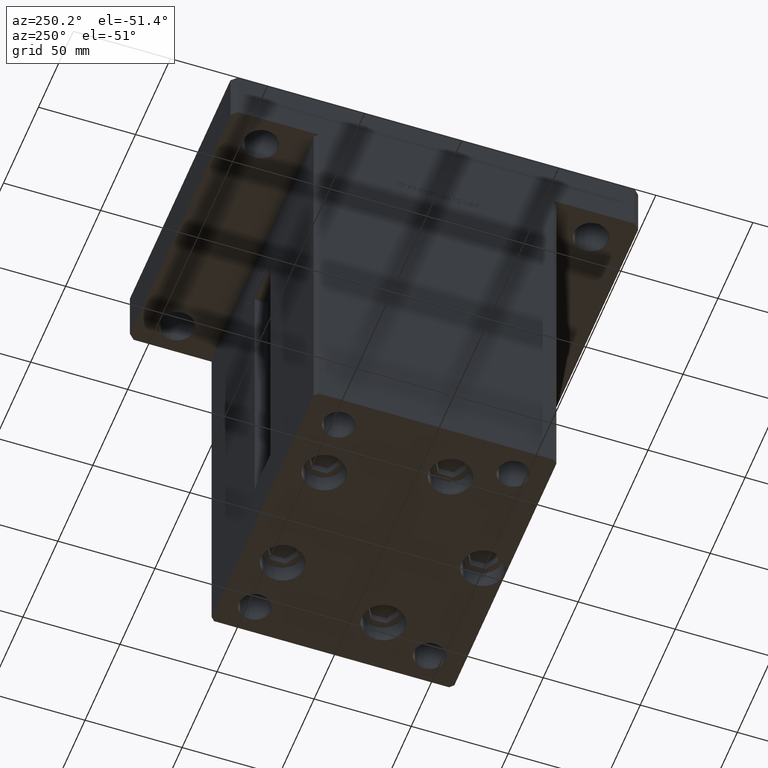
[diagram: clean part render]
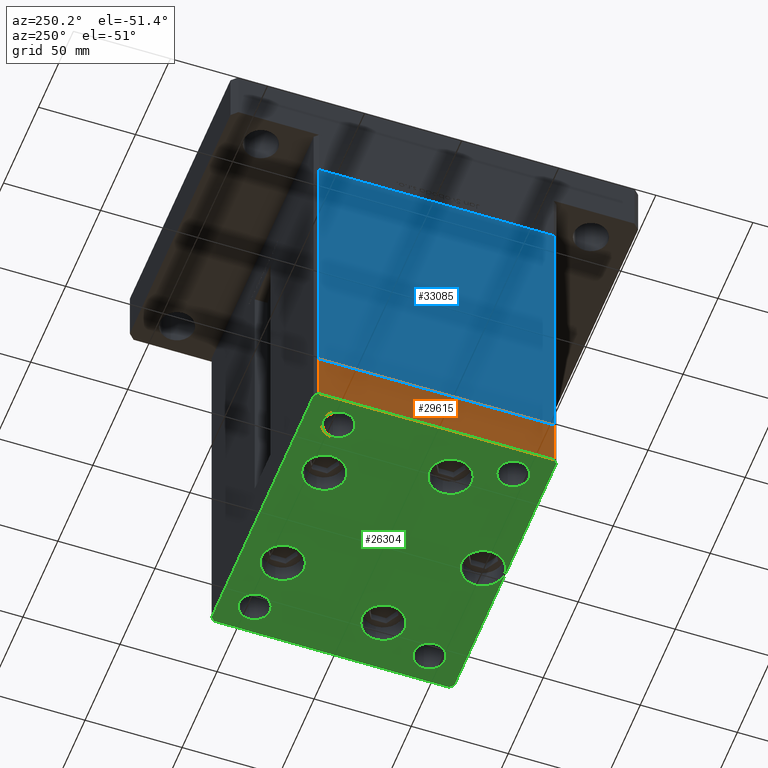
[diagram: same view with three faces highlighted in distinct colors, each labeled with its STEP entity id]
A machine part, auxiliary view with three faces highlighted in distinct colors.
Their STEP definitions:

[orange] entity #29615 — the highlighted planar face has unit normal (-1, 0, 0).
#1670 = VECTOR ( 'NONE', #24112, 1000.000000000000000 ) ;
#3801 = CARTESIAN_POINT ( 'NONE',  ( 75.00000000000001421, -60.50000000000000711, -27.00000000000000000 ) ) ;
#5895 = EDGE_LOOP ( 'NONE', ( #16305, #48859, #20011, #42774 ) ) ;
#6499 = DIRECTION ( 'NONE',  ( 0.000000000000000000, 0.000000000000000000, 1.000000000000000000 ) ) ;
#7080 = PLANE ( 'NONE',  #20702 ) ;
#9153 = EDGE_CURVE ( 'NONE', #19454, #30851, #34776, .T. ) ;
#9877 = VECTOR ( 'NONE', #19430, 1000.000000000000000 ) ;
#11139 = FACE_OUTER_BOUND ( 'NONE', #5895, .T. ) ;
#13959 = DIRECTION ( 'NONE',  ( -6.881547673296424104E-16, 1.000000000000000000, 0.000000000000000000 ) ) ;
#14557 = CARTESIAN_POINT ( 'NONE',  ( 75.00000000000001421, -60.50000000000000711, -27.00000000000000000 ) ) ;
#14799 = VECTOR ( 'NONE', #13959, 1000.000000000000000 ) ;
#15160 = CARTESIAN_POINT ( 'NONE',  ( 75.00000000000001421, -60.50000000000000711, -27.00000000000000000 ) ) ;
#16305 = ORIENTED_EDGE ( 'NONE', *, *, #9153, .F. ) ;
#19430 = DIRECTION ( 'NONE',  ( -6.881547673296424104E-16, 1.000000000000000000, 0.000000000000000000 ) ) ;
#19454 = VERTEX_POINT ( 'NONE', #36546 ) ;
#20011 = ORIENTED_EDGE ( 'NONE', *, *, #46745, .T. ) ;
#20702 = AXIS2_PLACEMENT_3D ( 'NONE', #43885, #27918, #52303 ) ;
#23001 = EDGE_CURVE ( 'NONE', #46417, #19454, #48464, .T. ) ;
#23753 = LINE ( 'NONE', #14557, #9877 ) ;
#23819 = CARTESIAN_POINT ( 'NONE',  ( 74.99999999999992895, 60.50000000000002842, -27.00000000000000000 ) ) ;
#24112 = DIRECTION ( 'NONE',  ( 0.000000000000000000, 0.000000000000000000, 1.000000000000000000 ) ) ;
#27918 = DIRECTION ( 'NONE',  ( 1.000000000000000000, 6.881547673296424104E-16, -0.000000000000000000 ) ) ;
#29615 = ADVANCED_FACE ( 'NONE', ( #11139 ), #7080, .T. ) ;
#30851 = VERTEX_POINT ( 'NONE', #43828 ) ;
#32396 = CARTESIAN_POINT ( 'NONE',  ( 74.99999999999992895, 60.50000000000002842, -27.00000000000000000 ) ) ;
#34504 = CARTESIAN_POINT ( 'NONE',  ( 75.00000000000001421, -60.50000000000000711, 0.000000000000000000 ) ) ;
#34776 = LINE ( 'NONE', #34504, #14799 ) ;
#36546 = CARTESIAN_POINT ( 'NONE',  ( 75.00000000000001421, -60.50000000000000711, 0.000000000000000000 ) ) ;
#39257 = LINE ( 'NONE', #23819, #46150 ) ;
#39911 = VERTEX_POINT ( 'NONE', #32396 ) ;
#42774 = ORIENTED_EDGE ( 'NONE', *, *, #46441, .T. ) ;
#43828 = CARTESIAN_POINT ( 'NONE',  ( 74.99999999999992895, 60.50000000000002842, 0.000000000000000000 ) ) ;
#43885 = CARTESIAN_POINT ( 'NONE',  ( 75.00000000000001421, -60.50000000000000711, -27.00000000000000000 ) ) ;
#46150 = VECTOR ( 'NONE', #6499, 1000.000000000000000 ) ;
#46417 = VERTEX_POINT ( 'NONE', #15160 ) ;
#46441 = EDGE_CURVE ( 'NONE', #39911, #30851, #39257, .T. ) ;
#46745 = EDGE_CURVE ( 'NONE', #46417, #39911, #23753, .T. ) ;
#48464 = LINE ( 'NONE', #3801, #1670 ) ;
#48859 = ORIENTED_EDGE ( 'NONE', *, *, #23001, .F. ) ;
#52303 = DIRECTION ( 'NONE',  ( -6.881547673296424104E-16, 1.000000000000000000, 0.000000000000000000 ) ) ;

[blue] entity #33085 — the highlighted planar face has unit normal (1, 0, 0).
#699 = FACE_OUTER_BOUND ( 'NONE', #18303, .T. ) ;
#2719 = LINE ( 'NONE', #36514, #9611 ) ;
#3965 = LINE ( 'NONE', #36973, #21880 ) ;
#7864 = VERTEX_POINT ( 'NONE', #14539 ) ;
#8187 = EDGE_CURVE ( 'NONE', #39448, #7864, #27191, .T. ) ;
#9238 = CARTESIAN_POINT ( 'NONE',  ( -75.00000000000001421, 60.50000000000000000, 147.0000000000000000 ) ) ;
#9611 = VECTOR ( 'NONE', #48157, 1000.000000000000000 ) ;
#9889 = EDGE_CURVE ( 'NONE', #26989, #31221, #2719, .T. ) ;
#12744 = EDGE_CURVE ( 'NONE', #39448, #26989, #46450, .T. ) ;
#14539 = CARTESIAN_POINT ( 'NONE',  ( -74.99999999999998579, -60.50000000000000000, 147.0000000000000000 ) ) ;
#15097 = DIRECTION ( 'NONE',  ( -0.000000000000000000, -0.000000000000000000, -1.000000000000000000 ) ) ;
#15965 = CARTESIAN_POINT ( 'NONE',  ( -75.00000000000001421, 60.50000000000000000, 0.000000000000000000 ) ) ;
#17236 = CARTESIAN_POINT ( 'NONE',  ( -75.00000000000001421, 60.50000000000000000, 147.0000000000000000 ) ) ;
#17748 = DIRECTION ( 'NONE',  ( 2.293849224432141861E-16, -1.000000000000000000, 0.000000000000000000 ) ) ;
#18303 = EDGE_LOOP ( 'NONE', ( #44614, #30763, #53105, #24958 ) ) ;
#20823 = VECTOR ( 'NONE', #17748, 1000.000000000000000 ) ;
#21880 = VECTOR ( 'NONE', #15097, 1000.000000000000000 ) ;
#24958 = ORIENTED_EDGE ( 'NONE', *, *, #12744, .T. ) ;
#25897 = DIRECTION ( 'NONE',  ( -2.293849224432141861E-16, 1.000000000000000000, 0.000000000000000000 ) ) ;
#26694 = CARTESIAN_POINT ( 'NONE',  ( -75.00000000000001421, 60.50000000000000000, 147.0000000000000000 ) ) ;
#26989 = VERTEX_POINT ( 'NONE', #15965 ) ;
#27191 = LINE ( 'NONE', #38307, #20823 ) ;
#30309 = AXIS2_PLACEMENT_3D ( 'NONE', #17236, #46994, #25897 ) ;
#30763 = ORIENTED_EDGE ( 'NONE', *, *, #38011, .F. ) ;
#30992 = DIRECTION ( 'NONE',  ( -0.000000000000000000, -0.000000000000000000, -1.000000000000000000 ) ) ;
#31221 = VERTEX_POINT ( 'NONE', #41306 ) ;
#33085 = ADVANCED_FACE ( 'NONE', ( #699 ), #34257, .F. ) ;
#34257 = PLANE ( 'NONE',  #30309 ) ;
#36514 = CARTESIAN_POINT ( 'NONE',  ( -75.00000000000001421, 60.50000000000000000, 0.000000000000000000 ) ) ;
#36973 = CARTESIAN_POINT ( 'NONE',  ( -74.99999999999998579, -60.50000000000000000, 147.0000000000000000 ) ) ;
#38011 = EDGE_CURVE ( 'NONE', #7864, #31221, #3965, .T. ) ;
#38307 = CARTESIAN_POINT ( 'NONE',  ( -75.00000000000001421, 60.50000000000000000, 147.0000000000000000 ) ) ;
#39448 = VERTEX_POINT ( 'NONE', #9238 ) ;
#41306 = CARTESIAN_POINT ( 'NONE',  ( -74.99999999999998579, -60.50000000000000000, 0.000000000000000000 ) ) ;
#44614 = ORIENTED_EDGE ( 'NONE', *, *, #9889, .T. ) ;
#46024 = VECTOR ( 'NONE', #30992, 1000.000000000000000 ) ;
#46450 = LINE ( 'NONE', #26694, #46024 ) ;
#46994 = DIRECTION ( 'NONE',  ( 1.000000000000000000, 2.293849224432141861E-16, -0.000000000000000000 ) ) ;
#48157 = DIRECTION ( 'NONE',  ( 2.293849224432141861E-16, -1.000000000000000000, 0.000000000000000000 ) ) ;
#53105 = ORIENTED_EDGE ( 'NONE', *, *, #8187, .F. ) ;

[green] entity #26304 — the highlighted planar face has unit normal (0, 0, -1).
#82 = VECTOR ( 'NONE', #24612, 1000.000000000000000 ) ;
#180 = CARTESIAN_POINT ( 'NONE',  ( -73.00000000000001421, 62.49999999999998579, 0.000000000000000000 ) ) ;
#779 = VERTEX_POINT ( 'NONE', #45626 ) ;
#1178 = ORIENTED_EDGE ( 'NONE', *, *, #33635, .F. ) ;
#1245 = VERTEX_POINT ( 'NONE', #52593 ) ;
#1435 = CARTESIAN_POINT ( 'NONE',  ( 48.08326112068522207, -16.99999999999999645, 0.000000000000000000 ) ) ;
#1458 = DIRECTION ( 'NONE',  ( 1.000000000000000000, 0.000000000000000000, 0.000000000000000000 ) ) ;
#2216 = EDGE_LOOP ( 'NONE', ( #52134, #20752 ) ) ;
#2293 = CARTESIAN_POINT ( 'NONE',  ( 0.000000000000000000, 0.000000000000000000, 0.000000000000000000 ) ) ;
#2433 = DIRECTION ( 'NONE',  ( 0.000000000000000000, -0.000000000000000000, -1.000000000000000000 ) ) ;
#2689 = ORIENTED_EDGE ( 'NONE', *, *, #42581, .T. ) ;
#2888 = EDGE_LOOP ( 'NONE', ( #48666, #42764 ) ) ;
#3071 = VERTEX_POINT ( 'NONE', #41234 ) ;
#3218 = ORIENTED_EDGE ( 'NONE', *, *, #9643, .T. ) ;
#3416 = VERTEX_POINT ( 'NONE', #13297 ) ;
#3475 = CIRCLE ( 'NONE', #49244, 8.000000000000007105 ) ;
#3558 = EDGE_CURVE ( 'NONE', #31889, #53554, #12420, .T. ) ;
#3660 = AXIS2_PLACEMENT_3D ( 'NONE', #22845, #10364, #39331 ) ;
#3757 = DIRECTION ( 'NONE',  ( 0.000000000000000000, -0.000000000000000000, -1.000000000000000000 ) ) ;
#4068 = ORIENTED_EDGE ( 'NONE', *, *, #19678, .T. ) ;
#4118 = CARTESIAN_POINT ( 'NONE',  ( 68.00000000000000000, 44.99999999999999289, 0.000000000000000000 ) ) ;
#4299 = DIRECTION ( 'NONE',  ( -1.000000000000000000, -1.901066822988282689E-16, 0.000000000000000000 ) ) ;
#4426 = ORIENTED_EDGE ( 'NONE', *, *, #9153, .T. ) ;
#4714 = DIRECTION ( 'NONE',  ( 0.000000000000000000, -0.000000000000000000, -1.000000000000000000 ) ) ;
#4930 = DIRECTION ( 'NONE',  ( 1.000000000000000000, 9.505334114941407284E-17, 0.000000000000000000 ) ) ;
#5876 = ORIENTED_EDGE ( 'NONE', *, *, #35197, .T. ) ;
#5910 = AXIS2_PLACEMENT_3D ( 'NONE', #39461, #52463, #15369 ) ;
#6189 = EDGE_CURVE ( 'NONE', #43228, #51612, #3475, .T. ) ;
#6635 = CIRCLE ( 'NONE', #13558, 10.99999999999999645 ) ;
#6678 = EDGE_LOOP ( 'NONE', ( #37601, #5876 ) ) ;
#6776 = CARTESIAN_POINT ( 'NONE',  ( -40.73102073172060500, 41.43749999999998579, 0.000000000000000000 ) ) ;
#6812 = DIRECTION ( 'NONE',  ( 0.000000000000000000, -1.000000000000000000, 0.000000000000000000 ) ) ;
#7166 = VECTOR ( 'NONE', #4930, 1000.000000000000000 ) ;
#7357 = DIRECTION ( 'NONE',  ( 1.000000000000000000, 0.000000000000000000, 0.000000000000000000 ) ) ;
#7461 = VERTEX_POINT ( 'NONE', #10800 ) ;
#7636 = CIRCLE ( 'NONE', #5910, 11.00000000000000355 ) ;
#7741 = EDGE_CURVE ( 'NONE', #16057, #27799, #32012, .T. ) ;
#8090 = CARTESIAN_POINT ( 'NONE',  ( 73.00000000000001421, -62.50000000000001421, 0.000000000000000000 ) ) ;
#8123 = CARTESIAN_POINT ( 'NONE',  ( 59.08326112068522207, -16.99999999999999645, 0.000000000000000000 ) ) ;
#8326 = DIRECTION ( 'NONE',  ( 1.000000000000000000, 0.000000000000000000, 0.000000000000000000 ) ) ;
#8445 = LINE ( 'NONE', #12250, #7166 ) ;
#8624 = VERTEX_POINT ( 'NONE', #44424 ) ;
#8659 = EDGE_CURVE ( 'NONE', #3416, #51446, #52839, .T. ) ;
#9153 = EDGE_CURVE ( 'NONE', #19454, #30851, #34776, .T. ) ;
#9468 = EDGE_CURVE ( 'NONE', #8624, #51910, #51121, .T. ) ;
#9643 = EDGE_CURVE ( 'NONE', #30851, #31889, #37100, .T. ) ;
#10021 = EDGE_CURVE ( 'NONE', #43587, #19454, #45157, .T. ) ;
#10225 = CARTESIAN_POINT ( 'NONE',  ( 29.73102073172059789, 41.43749999999999289, 0.000000000000000000 ) ) ;
#10267 = AXIS2_PLACEMENT_3D ( 'NONE', #15844, #41794, #33384 ) ;
#10364 = DIRECTION ( 'NONE',  ( -0.000000000000000000, 0.000000000000000000, 1.000000000000000000 ) ) ;
#10401 = FACE_BOUND ( 'NONE', #53555, .T. ) ;
#10800 = CARTESIAN_POINT ( 'NONE',  ( -67.99999999999998579, 45.00000000000000000, 0.000000000000000000 ) ) ;
#11350 = VECTOR ( 'NONE', #29514, 1000.000000000000114 ) ;
#11521 = CARTESIAN_POINT ( 'NONE',  ( 60.00000000000000000, -44.99999999999999289, 0.000000000000000000 ) ) ;
#11623 = DIRECTION ( 'NONE',  ( 0.000000000000000000, -0.000000000000000000, -1.000000000000000000 ) ) ;
#12192 = CIRCLE ( 'NONE', #42452, 8.000000000000000000 ) ;
#12250 = CARTESIAN_POINT ( 'NONE',  ( -73.00000000000001421, -62.50000000000002842, 0.000000000000000000 ) ) ;
#12420 = LINE ( 'NONE', #32974, #21530 ) ;
#13082 = AXIS2_PLACEMENT_3D ( 'NONE', #1435, #51775, #34981 ) ;
#13274 = EDGE_LOOP ( 'NONE', ( #35147, #34021 ) ) ;
#13297 = CARTESIAN_POINT ( 'NONE',  ( -75.00000000000001421, 60.49999999999997158, 0.000000000000000000 ) ) ;
#13558 = AXIS2_PLACEMENT_3D ( 'NONE', #36593, #27680, #27939 ) ;
#13824 = EDGE_LOOP ( 'NONE', ( #45353, #43768 ) ) ;
#13959 = DIRECTION ( 'NONE',  ( -6.881547673296424104E-16, 1.000000000000000000, 0.000000000000000000 ) ) ;
#14423 = ORIENTED_EDGE ( 'NONE', *, *, #3558, .T. ) ;
#14489 = VECTOR ( 'NONE', #24578, 1000.000000000000114 ) ;
#14632 = EDGE_LOOP ( 'NONE', ( #1178, #52741 ) ) ;
#14740 = FACE_OUTER_BOUND ( 'NONE', #33244, .T. ) ;
#14799 = VECTOR ( 'NONE', #13959, 1000.000000000000000 ) ;
#15223 = CARTESIAN_POINT ( 'NONE',  ( -60.00000000000000000, 45.00000000000000000, 0.000000000000000000 ) ) ;
#15369 = DIRECTION ( 'NONE',  ( 1.000000000000000000, 0.000000000000000000, 0.000000000000000000 ) ) ;
#15602 = AXIS2_PLACEMENT_3D ( 'NONE', #16998, #21608, #8326 ) ;
#15756 = CIRCLE ( 'NONE', #52091, 10.99999999999999645 ) ;
#15844 = CARTESIAN_POINT ( 'NONE',  ( -29.73102073172060500, 41.43749999999998579, 0.000000000000000000 ) ) ;
#15869 = AXIS2_PLACEMENT_3D ( 'NONE', #41391, #41931, #44918 ) ;
#16057 = VERTEX_POINT ( 'NONE', #24602 ) ;
#16743 = CARTESIAN_POINT ( 'NONE',  ( 51.99999999999999289, -44.99999999999999289, 0.000000000000000000 ) ) ;
#16821 = CARTESIAN_POINT ( 'NONE',  ( 74.99999999999992895, 60.50000000000002842, 0.000000000000000000 ) ) ;
#16998 = CARTESIAN_POINT ( 'NONE',  ( -48.08326112068522207, -17.00000000000000711, 0.000000000000000000 ) ) ;
#17115 = AXIS2_PLACEMENT_3D ( 'NONE', #37841, #49755, #17295 ) ;
#17295 = DIRECTION ( 'NONE',  ( 1.000000000000000000, 0.000000000000000000, 0.000000000000000000 ) ) ;
#17312 = EDGE_CURVE ( 'NONE', #38326, #23074, #6635, .T. ) ;
#17756 = VERTEX_POINT ( 'NONE', #47245 ) ;
#17977 = CIRCLE ( 'NONE', #17115, 8.000000000000000000 ) ;
#18233 = ORIENTED_EDGE ( 'NONE', *, *, #8659, .T. ) ;
#18964 = DIRECTION ( 'NONE',  ( 1.000000000000000000, 0.000000000000000000, 0.000000000000000000 ) ) ;
#19135 = DIRECTION ( 'NONE',  ( 1.000000000000000000, 0.000000000000000000, 0.000000000000000000 ) ) ;
#19190 = CARTESIAN_POINT ( 'NONE',  ( 60.00000000000000000, 44.99999999999999289, 0.000000000000000000 ) ) ;
#19330 = CIRCLE ( 'NONE', #47807, 11.00000000000000355 ) ;
#19352 = FACE_BOUND ( 'NONE', #14632, .T. ) ;
#19454 = VERTEX_POINT ( 'NONE', #36546 ) ;
#19678 = EDGE_CURVE ( 'NONE', #51446, #1245, #45117, .T. ) ;
#19713 = CARTESIAN_POINT ( 'NONE',  ( -18.73102073172060500, 41.43749999999998579, 0.000000000000000000 ) ) ;
#20752 = ORIENTED_EDGE ( 'NONE', *, *, #39606, .T. ) ;
#20864 = AXIS2_PLACEMENT_3D ( 'NONE', #41793, #4714, #1458 ) ;
#20985 = DIRECTION ( 'NONE',  ( 1.000000000000000000, 0.000000000000000000, 0.000000000000000000 ) ) ;
#21020 = EDGE_CURVE ( 'NONE', #34040, #779, #17977, .T. ) ;
#21212 = ORIENTED_EDGE ( 'NONE', *, *, #25070, .T. ) ;
#21530 = VECTOR ( 'NONE', #4299, 1000.000000000000000 ) ;
#21581 = ORIENTED_EDGE ( 'NONE', *, *, #40625, .T. ) ;
#21608 = DIRECTION ( 'NONE',  ( 0.000000000000000000, -0.000000000000000000, -1.000000000000000000 ) ) ;
#22076 = EDGE_CURVE ( 'NONE', #51910, #8624, #7636, .T. ) ;
#22653 = CIRCLE ( 'NONE', #52900, 11.00000000000000000 ) ;
#22845 = CARTESIAN_POINT ( 'NONE',  ( 60.00000000000000000, 44.99999999999999289, 0.000000000000000000 ) ) ;
#22877 = PLANE ( 'NONE',  #46667 ) ;
#23014 = CARTESIAN_POINT ( 'NONE',  ( 6.245698675651500444E-15, -51.00000000000000000, 0.000000000000000000 ) ) ;
#23074 = VERTEX_POINT ( 'NONE', #38692 ) ;
#23619 = VERTEX_POINT ( 'NONE', #6776 ) ;
#24358 = CARTESIAN_POINT ( 'NONE',  ( -10.99999999999999289, -51.00000000000000000, 0.000000000000000000 ) ) ;
#24491 = CIRCLE ( 'NONE', #25378, 8.000000000000007105 ) ;
#24578 = DIRECTION ( 'NONE',  ( 0.7071067811865451302, -0.7071067811865500152, 0.000000000000000000 ) ) ;
#24602 = CARTESIAN_POINT ( 'NONE',  ( -37.08326112068521496, -17.00000000000000711, 0.000000000000000000 ) ) ;
#24612 = DIRECTION ( 'NONE',  ( 0.7071067811865463515, 0.7071067811865487940, 0.000000000000000000 ) ) ;
#25070 = EDGE_CURVE ( 'NONE', #44791, #3071, #37961, .T. ) ;
#25378 = AXIS2_PLACEMENT_3D ( 'NONE', #36679, #37207, #20985 ) ;
#26304 = ADVANCED_FACE ( 'NONE', ( #27441, #47475, #10401, #35284, #35557, #48007, #43424, #19352, #14740, #52361 ), #22877, .T. ) ;
#26799 = ORIENTED_EDGE ( 'NONE', *, *, #9468, .T. ) ;
#27000 = VERTEX_POINT ( 'NONE', #24358 ) ;
#27009 = DIRECTION ( 'NONE',  ( 1.000000000000000000, 0.000000000000000000, 0.000000000000000000 ) ) ;
#27091 = CARTESIAN_POINT ( 'NONE',  ( 11.00000000000000711, -51.00000000000000000, 0.000000000000000000 ) ) ;
#27441 = FACE_BOUND ( 'NONE', #2216, .T. ) ;
#27442 = EDGE_CURVE ( 'NONE', #53554, #3416, #34800, .T. ) ;
#27533 = EDGE_CURVE ( 'NONE', #23619, #28110, #51776, .T. ) ;
#27680 = DIRECTION ( 'NONE',  ( 0.000000000000000000, -0.000000000000000000, -1.000000000000000000 ) ) ;
#27799 = VERTEX_POINT ( 'NONE', #50316 ) ;
#27939 = DIRECTION ( 'NONE',  ( 1.000000000000000000, 0.000000000000000000, 0.000000000000000000 ) ) ;
#28110 = VERTEX_POINT ( 'NONE', #19713 ) ;
#28113 = DIRECTION ( 'NONE',  ( 1.000000000000000000, 0.000000000000000000, 0.000000000000000000 ) ) ;
#28601 = CIRCLE ( 'NONE', #20864, 8.000000000000000000 ) ;
#29143 = CARTESIAN_POINT ( 'NONE',  ( -75.00000000000001421, -60.50000000000001421, 0.000000000000000000 ) ) ;
#29248 = EDGE_LOOP ( 'NONE', ( #43009, #32133 ) ) ;
#29514 = DIRECTION ( 'NONE',  ( -0.7071067811865500152, 0.7071067811865451302, 0.000000000000000000 ) ) ;
#30076 = CARTESIAN_POINT ( 'NONE',  ( -60.00000000000000000, 45.00000000000000000, 0.000000000000000000 ) ) ;
#30210 = CARTESIAN_POINT ( 'NONE',  ( -73.00000000000001421, 62.49999999999998579, 0.000000000000000000 ) ) ;
#30851 = VERTEX_POINT ( 'NONE', #43828 ) ;
#31217 = DIRECTION ( 'NONE',  ( -0.000000000000000000, 0.000000000000000000, 1.000000000000000000 ) ) ;
#31798 = DIRECTION ( 'NONE',  ( 0.000000000000000000, -0.000000000000000000, -1.000000000000000000 ) ) ;
#31849 = DIRECTION ( 'NONE',  ( 1.000000000000000000, 0.000000000000000000, 0.000000000000000000 ) ) ;
#31889 = VERTEX_POINT ( 'NONE', #50818 ) ;
#32012 = CIRCLE ( 'NONE', #15602, 11.00000000000000355 ) ;
#32133 = ORIENTED_EDGE ( 'NONE', *, *, #33345, .T. ) ;
#32893 = VERTEX_POINT ( 'NONE', #27091 ) ;
#32974 = CARTESIAN_POINT ( 'NONE',  ( 72.99999999999992895, 62.50000000000001421, 0.000000000000000000 ) ) ;
#33244 = EDGE_LOOP ( 'NONE', ( #4068, #2689, #38249, #4426, #3218, #14423, #33373, #18233 ) ) ;
#33345 = EDGE_CURVE ( 'NONE', #779, #34040, #28601, .T. ) ;
#33373 = ORIENTED_EDGE ( 'NONE', *, *, #27442, .T. ) ;
#33384 = DIRECTION ( 'NONE',  ( 1.000000000000000000, 0.000000000000000000, 0.000000000000000000 ) ) ;
#33635 = EDGE_CURVE ( 'NONE', #17756, #7461, #12192, .T. ) ;
#34021 = ORIENTED_EDGE ( 'NONE', *, *, #7741, .T. ) ;
#34040 = VERTEX_POINT ( 'NONE', #38959 ) ;
#34504 = CARTESIAN_POINT ( 'NONE',  ( 75.00000000000001421, -60.50000000000000711, 0.000000000000000000 ) ) ;
#34776 = LINE ( 'NONE', #34504, #14799 ) ;
#34800 = LINE ( 'NONE', #30210, #48277 ) ;
#34906 = CARTESIAN_POINT ( 'NONE',  ( -48.08326112068522207, -17.00000000000000711, 0.000000000000000000 ) ) ;
#34981 = DIRECTION ( 'NONE',  ( 1.000000000000000000, 0.000000000000000000, 0.000000000000000000 ) ) ;
#35147 = ORIENTED_EDGE ( 'NONE', *, *, #44577, .T. ) ;
#35197 = EDGE_CURVE ( 'NONE', #32893, #27000, #38159, .T. ) ;
#35284 = FACE_BOUND ( 'NONE', #6678, .T. ) ;
#35509 = DIRECTION ( 'NONE',  ( -0.000000000000000000, 0.000000000000000000, 1.000000000000000000 ) ) ;
#35557 = FACE_BOUND ( 'NONE', #13274, .T. ) ;
#35662 = DIRECTION ( 'NONE',  ( -0.000000000000000000, 0.000000000000000000, 1.000000000000000000 ) ) ;
#36144 = EDGE_CURVE ( 'NONE', #27000, #32893, #22653, .T. ) ;
#36546 = CARTESIAN_POINT ( 'NONE',  ( 75.00000000000001421, -60.50000000000000711, 0.000000000000000000 ) ) ;
#36593 = CARTESIAN_POINT ( 'NONE',  ( 29.73102073172059789, 41.43749999999999289, 0.000000000000000000 ) ) ;
#36679 = CARTESIAN_POINT ( 'NONE',  ( 60.00000000000000000, -44.99999999999999289, 0.000000000000000000 ) ) ;
#36941 = EDGE_CURVE ( 'NONE', #51612, #43228, #43419, .T. ) ;
#37100 = LINE ( 'NONE', #16821, #11350 ) ;
#37207 = DIRECTION ( 'NONE',  ( 0.000000000000000000, -0.000000000000000000, -1.000000000000000000 ) ) ;
#37310 = CARTESIAN_POINT ( 'NONE',  ( 6.245698675651500444E-15, -51.00000000000000000, 0.000000000000000000 ) ) ;
#37453 = CIRCLE ( 'NONE', #15869, 11.00000000000000000 ) ;
#37601 = ORIENTED_EDGE ( 'NONE', *, *, #36144, .T. ) ;
#37818 = EDGE_CURVE ( 'NONE', #23074, #38326, #15756, .T. ) ;
#37841 = CARTESIAN_POINT ( 'NONE',  ( -59.99999999999999289, -45.00000000000000000, 0.000000000000000000 ) ) ;
#37961 = CIRCLE ( 'NONE', #43155, 8.000000000000007105 ) ;
#38159 = CIRCLE ( 'NONE', #45054, 11.00000000000000000 ) ;
#38206 = DIRECTION ( 'NONE',  ( -0.000000000000000000, 0.000000000000000000, 1.000000000000000000 ) ) ;
#38249 = ORIENTED_EDGE ( 'NONE', *, *, #10021, .T. ) ;
#38326 = VERTEX_POINT ( 'NONE', #49889 ) ;
#38692 = CARTESIAN_POINT ( 'NONE',  ( 40.73102073172059079, 41.43749999999999289, 0.000000000000000000 ) ) ;
#38959 = CARTESIAN_POINT ( 'NONE',  ( -51.99999999999999289, -45.00000000000000000, 0.000000000000000000 ) ) ;
#39331 = DIRECTION ( 'NONE',  ( 1.000000000000000000, 0.000000000000000000, 0.000000000000000000 ) ) ;
#39461 = CARTESIAN_POINT ( 'NONE',  ( 48.08326112068522207, -16.99999999999999645, 0.000000000000000000 ) ) ;
#39606 = EDGE_CURVE ( 'NONE', #28110, #23619, #37453, .T. ) ;
#40625 = EDGE_CURVE ( 'NONE', #3071, #44791, #24491, .T. ) ;
#40705 = VECTOR ( 'NONE', #6812, 1000.000000000000000 ) ;
#41234 = CARTESIAN_POINT ( 'NONE',  ( 68.00000000000000000, -44.99999999999999289, 0.000000000000000000 ) ) ;
#41391 = CARTESIAN_POINT ( 'NONE',  ( -29.73102073172060500, 41.43749999999998579, 0.000000000000000000 ) ) ;
#41727 = DIRECTION ( 'NONE',  ( 1.000000000000000000, 0.000000000000000000, 0.000000000000000000 ) ) ;
#41793 = CARTESIAN_POINT ( 'NONE',  ( -59.99999999999999289, -45.00000000000000000, 0.000000000000000000 ) ) ;
#41794 = DIRECTION ( 'NONE',  ( 0.000000000000000000, -0.000000000000000000, -1.000000000000000000 ) ) ;
#41931 = DIRECTION ( 'NONE',  ( 0.000000000000000000, -0.000000000000000000, -1.000000000000000000 ) ) ;
#42062 = CARTESIAN_POINT ( 'NONE',  ( -75.00000000000001421, -60.50000000000001421, 0.000000000000000000 ) ) ;
#42078 = CARTESIAN_POINT ( 'NONE',  ( 51.99999999999999289, 44.99999999999999289, 0.000000000000000000 ) ) ;
#42452 = AXIS2_PLACEMENT_3D ( 'NONE', #30076, #38206, #41727 ) ;
#42581 = EDGE_CURVE ( 'NONE', #1245, #43587, #8445, .T. ) ;
#42764 = ORIENTED_EDGE ( 'NONE', *, *, #6189, .F. ) ;
#43009 = ORIENTED_EDGE ( 'NONE', *, *, #21020, .T. ) ;
#43155 = AXIS2_PLACEMENT_3D ( 'NONE', #11521, #31798, #19135 ) ;
#43228 = VERTEX_POINT ( 'NONE', #42078 ) ;
#43419 = CIRCLE ( 'NONE', #3660, 8.000000000000007105 ) ;
#43424 = FACE_BOUND ( 'NONE', #52251, .T. ) ;
#43525 = AXIS2_PLACEMENT_3D ( 'NONE', #15223, #35509, #7357 ) ;
#43587 = VERTEX_POINT ( 'NONE', #52298 ) ;
#43630 = CARTESIAN_POINT ( 'NONE',  ( -75.00000000000001421, 60.49999999999997158, 0.000000000000000000 ) ) ;
#43768 = ORIENTED_EDGE ( 'NONE', *, *, #37818, .T. ) ;
#43828 = CARTESIAN_POINT ( 'NONE',  ( 74.99999999999992895, 60.50000000000002842, 0.000000000000000000 ) ) ;
#44424 = CARTESIAN_POINT ( 'NONE',  ( 37.08326112068521496, -16.99999999999999645, 0.000000000000000000 ) ) ;
#44577 = EDGE_CURVE ( 'NONE', #27799, #16057, #19330, .T. ) ;
#44791 = VERTEX_POINT ( 'NONE', #16743 ) ;
#44918 = DIRECTION ( 'NONE',  ( 1.000000000000000000, 0.000000000000000000, 0.000000000000000000 ) ) ;
#44948 = ORIENTED_EDGE ( 'NONE', *, *, #22076, .T. ) ;
#45054 = AXIS2_PLACEMENT_3D ( 'NONE', #23014, #2433, #18964 ) ;
#45117 = LINE ( 'NONE', #29143, #14489 ) ;
#45157 = LINE ( 'NONE', #8090, #82 ) ;
#45353 = ORIENTED_EDGE ( 'NONE', *, *, #17312, .T. ) ;
#45626 = CARTESIAN_POINT ( 'NONE',  ( -67.99999999999998579, -45.00000000000000000, 0.000000000000000000 ) ) ;
#45687 = DIRECTION ( 'NONE',  ( 1.000000000000000000, 0.000000000000000000, 0.000000000000000000 ) ) ;
#46142 = EDGE_CURVE ( 'NONE', #7461, #17756, #53037, .T. ) ;
#46298 = DIRECTION ( 'NONE',  ( 0.000000000000000000, -0.000000000000000000, -1.000000000000000000 ) ) ;
#46667 = AXIS2_PLACEMENT_3D ( 'NONE', #2293, #31217, #47744 ) ;
#46721 = DIRECTION ( 'NONE',  ( -0.7071067811865451302, -0.7071067811865500152, 0.000000000000000000 ) ) ;
#47245 = CARTESIAN_POINT ( 'NONE',  ( -52.00000000000000000, 45.00000000000000000, 0.000000000000000000 ) ) ;
#47475 = FACE_BOUND ( 'NONE', #13824, .T. ) ;
#47744 = DIRECTION ( 'NONE',  ( 1.000000000000000000, 0.000000000000000000, 0.000000000000000000 ) ) ;
#47807 = AXIS2_PLACEMENT_3D ( 'NONE', #34906, #3757, #28113 ) ;
#48007 = FACE_BOUND ( 'NONE', #2888, .T. ) ;
#48277 = VECTOR ( 'NONE', #46721, 1000.000000000000114 ) ;
#48666 = ORIENTED_EDGE ( 'NONE', *, *, #36941, .F. ) ;
#49244 = AXIS2_PLACEMENT_3D ( 'NONE', #19190, #35662, #31849 ) ;
#49755 = DIRECTION ( 'NONE',  ( 0.000000000000000000, -0.000000000000000000, -1.000000000000000000 ) ) ;
#49889 = CARTESIAN_POINT ( 'NONE',  ( 18.73102073172060500, 41.43749999999999289, 0.000000000000000000 ) ) ;
#50316 = CARTESIAN_POINT ( 'NONE',  ( -59.08326112068522207, -17.00000000000000711, 0.000000000000000000 ) ) ;
#50818 = CARTESIAN_POINT ( 'NONE',  ( 72.99999999999992895, 62.50000000000001421, 0.000000000000000000 ) ) ;
#51121 = CIRCLE ( 'NONE', #13082, 11.00000000000000355 ) ;
#51446 = VERTEX_POINT ( 'NONE', #42062 ) ;
#51612 = VERTEX_POINT ( 'NONE', #4118 ) ;
#51775 = DIRECTION ( 'NONE',  ( 0.000000000000000000, -0.000000000000000000, -1.000000000000000000 ) ) ;
#51776 = CIRCLE ( 'NONE', #10267, 11.00000000000000000 ) ;
#51910 = VERTEX_POINT ( 'NONE', #8123 ) ;
#52091 = AXIS2_PLACEMENT_3D ( 'NONE', #10225, #46298, #27009 ) ;
#52134 = ORIENTED_EDGE ( 'NONE', *, *, #27533, .T. ) ;
#52251 = EDGE_LOOP ( 'NONE', ( #21581, #21212 ) ) ;
#52298 = CARTESIAN_POINT ( 'NONE',  ( 73.00000000000001421, -62.50000000000001421, 0.000000000000000000 ) ) ;
#52361 = FACE_BOUND ( 'NONE', #29248, .T. ) ;
#52463 = DIRECTION ( 'NONE',  ( 0.000000000000000000, -0.000000000000000000, -1.000000000000000000 ) ) ;
#52593 = CARTESIAN_POINT ( 'NONE',  ( -73.00000000000001421, -62.50000000000002842, 0.000000000000000000 ) ) ;
#52741 = ORIENTED_EDGE ( 'NONE', *, *, #46142, .F. ) ;
#52839 = LINE ( 'NONE', #43630, #40705 ) ;
#52900 = AXIS2_PLACEMENT_3D ( 'NONE', #37310, #11623, #45687 ) ;
#53037 = CIRCLE ( 'NONE', #43525, 8.000000000000000000 ) ;
#53554 = VERTEX_POINT ( 'NONE', #180 ) ;
#53555 = EDGE_LOOP ( 'NONE', ( #26799, #44948 ) ) ;